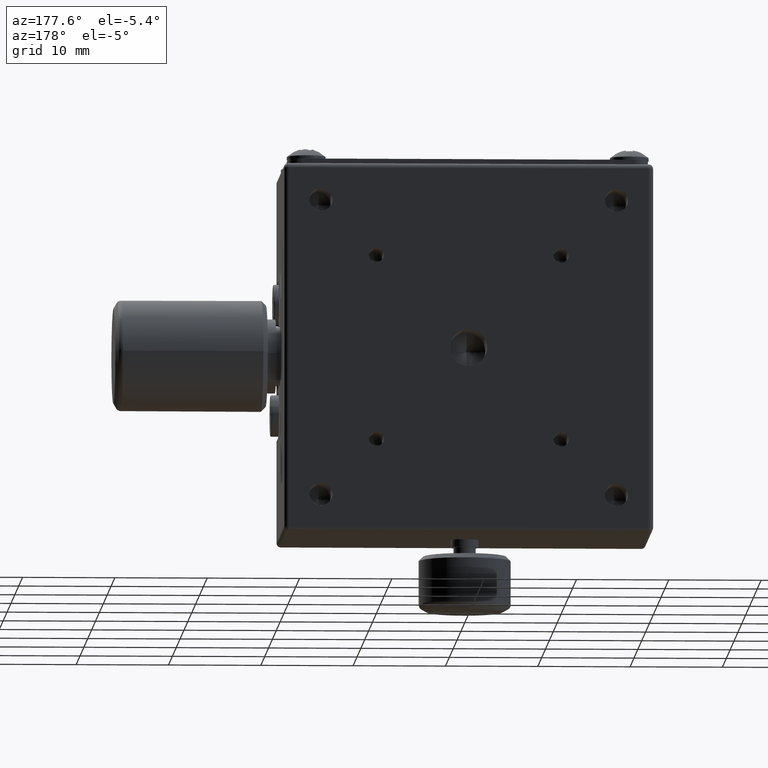
[diagram: clean part render]
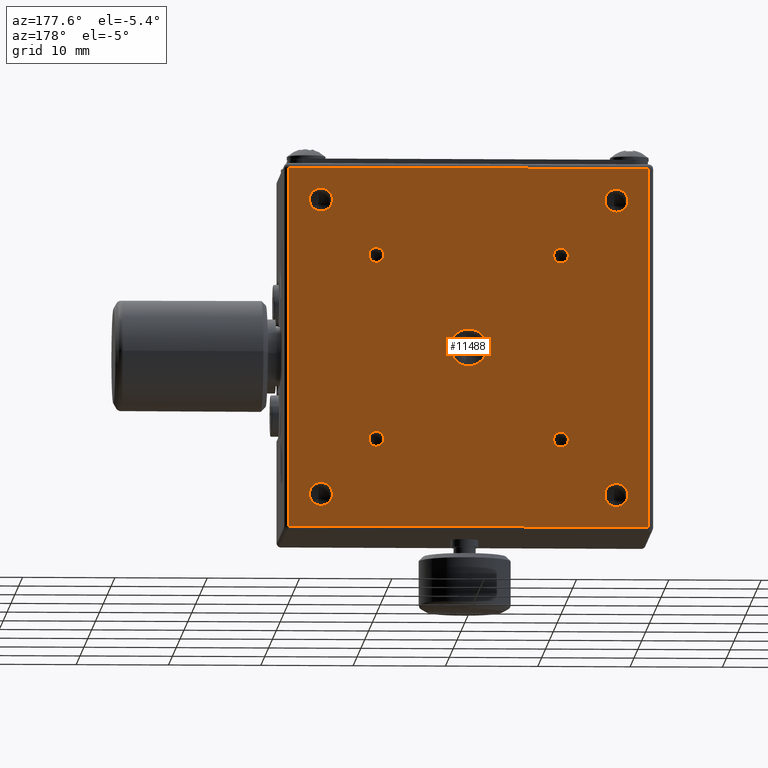
[diagram: same view with one face highlighted and labeled with its STEP entity id]
A machine part, auxiliary view. The second image highlights one B-rep face of the part: STEP entity #11488.
In plain terms, the highlighted planar face has unit normal (0, -1, 0).
Its self-contained STEP definition (entity closure, byte-faithful):
#175 = LINE ( 'NONE', #18153, #6393 ) ;
#185 = DIRECTION ( 'NONE',  ( 0.000000000000000000, 1.000000000000000000, 0.000000000000000000 ) ) ;
#244 = DIRECTION ( 'NONE',  ( 0.000000000000000000, 0.000000000000000000, 1.000000000000000000 ) ) ;
#380 = CARTESIAN_POINT ( 'NONE',  ( -10.00000000000000000, 40.00000000000000000, -9.199999999999999289 ) ) ;
#394 = VERTEX_POINT ( 'NONE', #2323 ) ;
#483 = DIRECTION ( 'NONE',  ( 0.000000000000000000, 0.000000000000000000, 1.000000000000000000 ) ) ;
#538 = LINE ( 'NONE', #17917, #19774 ) ;
#633 = EDGE_CURVE ( 'NONE', #25739, #20929, #4491, .T. ) ;
#678 = DIRECTION ( 'NONE',  ( 0.000000000000000000, 0.000000000000000000, 1.000000000000000000 ) ) ;
#874 = ORIENTED_EDGE ( 'NONE', *, *, #14924, .F. ) ;
#893 = AXIS2_PLACEMENT_3D ( 'NONE', #15643, #11113, #26324 ) ;
#991 = EDGE_CURVE ( 'NONE', #20929, #25739, #20135, .T. ) ;
#1111 = ORIENTED_EDGE ( 'NONE', *, *, #11831, .T. ) ;
#1133 = DIRECTION ( 'NONE',  ( 0.000000000000000000, 1.000000000000000000, 0.000000000000000000 ) ) ;
#1349 = AXIS2_PLACEMENT_3D ( 'NONE', #22227, #20189, #1935 ) ;
#1423 = FACE_BOUND ( 'NONE', #23931, .T. ) ;
#1427 = CIRCLE ( 'NONE', #14476, 1.249999999999999334 ) ;
#1567 = CARTESIAN_POINT ( 'NONE',  ( -20.00000000000000000, 40.00000000000000000, 20.00000000000000000 ) ) ;
#1619 = VERTEX_POINT ( 'NONE', #28747 ) ;
#1701 = CIRCLE ( 'NONE', #4038, 2.000000000000000000 ) ;
#1710 = DIRECTION ( 'NONE',  ( 1.734723475976804876E-16, -1.000000000000000000, 0.000000000000000000 ) ) ;
#1894 = CARTESIAN_POINT ( 'NONE',  ( -20.00000000000000000, 40.00000000000000000, -19.50000000000000000 ) ) ;
#1903 = CARTESIAN_POINT ( 'NONE',  ( -16.00000000000000000, 40.00000000000000000, 16.00000000000000000 ) ) ;
#1935 = DIRECTION ( 'NONE',  ( 0.000000000000000000, 0.000000000000000000, 1.000000000000000000 ) ) ;
#2033 = LINE ( 'NONE', #1894, #10081 ) ;
#2038 = AXIS2_PLACEMENT_3D ( 'NONE', #26583, #21917, #10805 ) ;
#2161 = DIRECTION ( 'NONE',  ( 0.000000000000000000, 1.000000000000000000, 0.000000000000000000 ) ) ;
#2188 = DIRECTION ( 'NONE',  ( 0.000000000000000000, 0.000000000000000000, 1.000000000000000000 ) ) ;
#2323 = CARTESIAN_POINT ( 'NONE',  ( 19.50000000000000000, 40.00000000000000000, -19.50000000000000000 ) ) ;
#2337 = VERTEX_POINT ( 'NONE', #16872 ) ;
#2352 = CARTESIAN_POINT ( 'NONE',  ( -10.00000000000000000, 40.00000000000000000, 9.199999999999999289 ) ) ;
#2798 = AXIS2_PLACEMENT_3D ( 'NONE', #1903, #15188, #6711 ) ;
#2867 = DIRECTION ( 'NONE',  ( 0.000000000000000000, 0.000000000000000000, 1.000000000000000000 ) ) ;
#3072 = EDGE_LOOP ( 'NONE', ( #11720, #8133 ) ) ;
#3189 = DIRECTION ( 'NONE',  ( 0.000000000000000000, 0.000000000000000000, 1.000000000000000000 ) ) ;
#3203 = VERTEX_POINT ( 'NONE', #3473 ) ;
#3212 = AXIS2_PLACEMENT_3D ( 'NONE', #20393, #18048, #2867 ) ;
#3458 = ORIENTED_EDGE ( 'NONE', *, *, #6688, .F. ) ;
#3473 = CARTESIAN_POINT ( 'NONE',  ( 16.00000000000000000, 40.00000000000000000, 14.75000000000000000 ) ) ;
#3484 = DIRECTION ( 'NONE',  ( 0.000000000000000000, 1.000000000000000000, 0.000000000000000000 ) ) ;
#3613 = FACE_BOUND ( 'NONE', #20534, .T. ) ;
#3669 = ORIENTED_EDGE ( 'NONE', *, *, #9067, .F. ) ;
#3722 = ORIENTED_EDGE ( 'NONE', *, *, #25144, .F. ) ;
#3756 = EDGE_LOOP ( 'NONE', ( #16642, #3722 ) ) ;
#3760 = PLANE ( 'NONE',  #16857 ) ;
#3791 = VERTEX_POINT ( 'NONE', #22851 ) ;
#3807 = VECTOR ( 'NONE', #10893, 1000.000000000000000 ) ;
#3860 = CARTESIAN_POINT ( 'NONE',  ( -10.00000000000000000, 40.00000000000000000, -10.80000000000000071 ) ) ;
#4038 = AXIS2_PLACEMENT_3D ( 'NONE', #18165, #185, #483 ) ;
#4361 = DIRECTION ( 'NONE',  ( -1.000000000000000000, -1.734723475976804876E-16, 0.000000000000000000 ) ) ;
#4376 = ORIENTED_EDGE ( 'NONE', *, *, #16426, .F. ) ;
#4491 = CIRCLE ( 'NONE', #25022, 0.7999999999999899414 ) ;
#4564 = EDGE_CURVE ( 'NONE', #3203, #17333, #13785, .T. ) ;
#4598 = CARTESIAN_POINT ( 'NONE',  ( -16.00000000000000000, 40.00000000000000000, 16.00000000000000000 ) ) ;
#4785 = CARTESIAN_POINT ( 'NONE',  ( 16.00000000000000000, 40.00000000000000000, 16.00000000000000000 ) ) ;
#5071 = EDGE_CURVE ( 'NONE', #1619, #20619, #21748, .T. ) ;
#5332 = CIRCLE ( 'NONE', #2038, 0.7999999999999899414 ) ;
#5644 = DIRECTION ( 'NONE',  ( 0.000000000000000000, 0.000000000000000000, 1.000000000000000000 ) ) ;
#5780 = CIRCLE ( 'NONE', #27236, 1.249999999999999334 ) ;
#5828 = DIRECTION ( 'NONE',  ( 0.000000000000000000, 0.000000000000000000, 1.000000000000000000 ) ) ;
#6150 = VERTEX_POINT ( 'NONE', #380 ) ;
#6168 = EDGE_CURVE ( 'NONE', #23506, #3791, #538, .T. ) ;
#6393 = VECTOR ( 'NONE', #9092, 1000.000000000000000 ) ;
#6473 = CIRCLE ( 'NONE', #1349, 0.7999999999999899414 ) ;
#6688 = EDGE_CURVE ( 'NONE', #13048, #2337, #17898, .T. ) ;
#6701 = EDGE_CURVE ( 'NONE', #19405, #20452, #5332, .T. ) ;
#6711 = DIRECTION ( 'NONE',  ( 0.000000000000000000, 0.000000000000000000, 1.000000000000000000 ) ) ;
#6785 = AXIS2_PLACEMENT_3D ( 'NONE', #4598, #13497, #28581 ) ;
#6866 = EDGE_CURVE ( 'NONE', #28586, #12294, #5780, .T. ) ;
#7167 = ORIENTED_EDGE ( 'NONE', *, *, #25314, .F. ) ;
#7303 = CARTESIAN_POINT ( 'NONE',  ( -16.00000000000000000, 40.00000000000000000, -16.00000000000000000 ) ) ;
#7617 = CARTESIAN_POINT ( 'NONE',  ( 16.00000000000000000, 40.00000000000000000, -14.75000000000000000 ) ) ;
#7821 = EDGE_CURVE ( 'NONE', #20619, #1619, #7855, .T. ) ;
#7845 = DIRECTION ( 'NONE',  ( 0.000000000000000000, 0.000000000000000000, 1.000000000000000000 ) ) ;
#7855 = CIRCLE ( 'NONE', #19515, 1.249999999999999334 ) ;
#8003 = FACE_BOUND ( 'NONE', #24335, .T. ) ;
#8014 = EDGE_LOOP ( 'NONE', ( #13676, #12629 ) ) ;
#8111 = DIRECTION ( 'NONE',  ( 0.000000000000000000, 1.000000000000000000, 0.000000000000000000 ) ) ;
#8133 = ORIENTED_EDGE ( 'NONE', *, *, #5071, .F. ) ;
#8479 = ORIENTED_EDGE ( 'NONE', *, *, #6168, .T. ) ;
#8501 = EDGE_CURVE ( 'NONE', #10556, #394, #175, .T. ) ;
#8839 = DIRECTION ( 'NONE',  ( 0.000000000000000000, 1.000000000000000000, 0.000000000000000000 ) ) ;
#8850 = EDGE_CURVE ( 'NONE', #12294, #28586, #1427, .T. ) ;
#9039 = CARTESIAN_POINT ( 'NONE',  ( 10.00000000000000000, 40.00000000000000000, 10.00000000000000000 ) ) ;
#9067 = EDGE_CURVE ( 'NONE', #10420, #6150, #16808, .T. ) ;
#9092 = DIRECTION ( 'NONE',  ( 0.000000000000000000, 0.000000000000000000, -1.000000000000000000 ) ) ;
#9395 = CARTESIAN_POINT ( 'NONE',  ( -16.00000000000000000, 40.00000000000000000, -17.25000000000000000 ) ) ;
#10081 = VECTOR ( 'NONE', #4361, 1000.000000000000000 ) ;
#10335 = FACE_BOUND ( 'NONE', #8014, .T. ) ;
#10420 = VERTEX_POINT ( 'NONE', #3860 ) ;
#10470 = DIRECTION ( 'NONE',  ( 0.000000000000000000, 0.000000000000000000, -1.000000000000000000 ) ) ;
#10556 = VERTEX_POINT ( 'NONE', #14204 ) ;
#10660 = CIRCLE ( 'NONE', #3212, 2.000000000000000000 ) ;
#10694 = DIRECTION ( 'NONE',  ( 0.000000000000000000, 1.000000000000000000, 0.000000000000000000 ) ) ;
#10805 = DIRECTION ( 'NONE',  ( 0.000000000000000000, 0.000000000000000000, 1.000000000000000000 ) ) ;
#10893 = DIRECTION ( 'NONE',  ( 1.000000000000000000, 1.734723475976804876E-16, 0.000000000000000000 ) ) ;
#11113 = DIRECTION ( 'NONE',  ( 0.000000000000000000, 1.000000000000000000, 0.000000000000000000 ) ) ;
#11351 = CARTESIAN_POINT ( 'NONE',  ( 16.00000000000000000, 40.00000000000000000, -16.00000000000000000 ) ) ;
#11488 = ADVANCED_FACE ( 'NONE', ( #3613, #28021, #12672, #8003, #25815, #12524, #17187, #1423, #10335, #25959 ), #3760, .F. ) ;
#11720 = ORIENTED_EDGE ( 'NONE', *, *, #7821, .F. ) ;
#11831 = EDGE_CURVE ( 'NONE', #3791, #10556, #26811, .T. ) ;
#11898 = EDGE_LOOP ( 'NONE', ( #13181, #24814 ) ) ;
#12294 = VERTEX_POINT ( 'NONE', #9395 ) ;
#12379 = CARTESIAN_POINT ( 'NONE',  ( 10.00000000000000000, 40.00000000000000000, -10.00000000000000000 ) ) ;
#12524 = FACE_BOUND ( 'NONE', #21862, .T. ) ;
#12614 = DIRECTION ( 'NONE',  ( 0.000000000000000000, 0.000000000000000000, 1.000000000000000000 ) ) ;
#12629 = ORIENTED_EDGE ( 'NONE', *, *, #991, .F. ) ;
#12672 = FACE_BOUND ( 'NONE', #3072, .T. ) ;
#12780 = AXIS2_PLACEMENT_3D ( 'NONE', #20016, #15325, #2188 ) ;
#13027 = CARTESIAN_POINT ( 'NONE',  ( 6.938893903907229955E-15, 40.00000000000000000, 2.000000000000000000 ) ) ;
#13048 = VERTEX_POINT ( 'NONE', #27547 ) ;
#13181 = ORIENTED_EDGE ( 'NONE', *, *, #14959, .F. ) ;
#13497 = DIRECTION ( 'NONE',  ( 0.000000000000000000, 1.000000000000000000, 0.000000000000000000 ) ) ;
#13538 = DIRECTION ( 'NONE',  ( 0.000000000000000000, 0.000000000000000000, 1.000000000000000000 ) ) ;
#13676 = ORIENTED_EDGE ( 'NONE', *, *, #633, .F. ) ;
#13785 = CIRCLE ( 'NONE', #16582, 1.250000000000001110 ) ;
#14204 = CARTESIAN_POINT ( 'NONE',  ( 19.50000000000000000, 40.00000000000000000, 19.50000000000000000 ) ) ;
#14476 = AXIS2_PLACEMENT_3D ( 'NONE', #21287, #16599, #7845 ) ;
#14924 = EDGE_CURVE ( 'NONE', #6150, #10420, #16277, .T. ) ;
#14959 = EDGE_CURVE ( 'NONE', #20452, #19405, #6473, .T. ) ;
#15023 = VERTEX_POINT ( 'NONE', #20629 ) ;
#15179 = DIRECTION ( 'NONE',  ( 0.000000000000000000, 0.000000000000000000, 1.000000000000000000 ) ) ;
#15188 = DIRECTION ( 'NONE',  ( 0.000000000000000000, 1.000000000000000000, 0.000000000000000000 ) ) ;
#15325 = DIRECTION ( 'NONE',  ( 0.000000000000000000, 1.000000000000000000, 0.000000000000000000 ) ) ;
#15643 = CARTESIAN_POINT ( 'NONE',  ( -10.00000000000000000, 40.00000000000000000, -10.00000000000000000 ) ) ;
#15661 = ORIENTED_EDGE ( 'NONE', *, *, #8850, .F. ) ;
#15677 = CARTESIAN_POINT ( 'NONE',  ( 10.00000000000000000, 40.00000000000000000, -9.199999999999999289 ) ) ;
#15776 = CARTESIAN_POINT ( 'NONE',  ( -10.00000000000000000, 40.00000000000000000, 10.80000000000000071 ) ) ;
#15783 = AXIS2_PLACEMENT_3D ( 'NONE', #25267, #16341, #23215 ) ;
#16277 = CIRCLE ( 'NONE', #893, 0.7999999999999899414 ) ;
#16341 = DIRECTION ( 'NONE',  ( 0.000000000000000000, 1.000000000000000000, 0.000000000000000000 ) ) ;
#16392 = AXIS2_PLACEMENT_3D ( 'NONE', #18795, #8111, #5644 ) ;
#16426 = EDGE_CURVE ( 'NONE', #2337, #13048, #16822, .T. ) ;
#16582 = AXIS2_PLACEMENT_3D ( 'NONE', #4785, #24938, #678 ) ;
#16599 = DIRECTION ( 'NONE',  ( 0.000000000000000000, 1.000000000000000000, 0.000000000000000000 ) ) ;
#16642 = ORIENTED_EDGE ( 'NONE', *, *, #18338, .F. ) ;
#16808 = CIRCLE ( 'NONE', #17746, 0.7999999999999899414 ) ;
#16817 = EDGE_LOOP ( 'NONE', ( #24647, #15661 ) ) ;
#16822 = CIRCLE ( 'NONE', #26145, 0.7999999999999899414 ) ;
#16857 = AXIS2_PLACEMENT_3D ( 'NONE', #1567, #1710, #10470 ) ;
#16872 = CARTESIAN_POINT ( 'NONE',  ( 10.00000000000000000, 40.00000000000000000, 9.199999999999999289 ) ) ;
#17165 = CARTESIAN_POINT ( 'NONE',  ( -16.00000000000000000, 40.00000000000000000, 14.75000000000000000 ) ) ;
#17187 = FACE_BOUND ( 'NONE', #11898, .T. ) ;
#17333 = VERTEX_POINT ( 'NONE', #25437 ) ;
#17746 = AXIS2_PLACEMENT_3D ( 'NONE', #19951, #8839, #26662 ) ;
#17898 = CIRCLE ( 'NONE', #12780, 0.7999999999999899414 ) ;
#17917 = CARTESIAN_POINT ( 'NONE',  ( -19.50000000000000000, 40.00000000000000000, 20.00000000000000000 ) ) ;
#18048 = DIRECTION ( 'NONE',  ( 0.000000000000000000, 1.000000000000000000, 0.000000000000000000 ) ) ;
#18092 = DIRECTION ( 'NONE',  ( 0.000000000000000000, 1.000000000000000000, 0.000000000000000000 ) ) ;
#18153 = CARTESIAN_POINT ( 'NONE',  ( 19.50000000000000000, 40.00000000000000000, 20.00000000000000000 ) ) ;
#18165 = CARTESIAN_POINT ( 'NONE',  ( 6.938893903907229955E-15, 40.00000000000000000, 1.517883041479705024E-15 ) ) ;
#18338 = EDGE_CURVE ( 'NONE', #15023, #21392, #24511, .T. ) ;
#18795 = CARTESIAN_POINT ( 'NONE',  ( 10.00000000000000000, 40.00000000000000000, -10.00000000000000000 ) ) ;
#19019 = ORIENTED_EDGE ( 'NONE', *, *, #8501, .T. ) ;
#19405 = VERTEX_POINT ( 'NONE', #2352 ) ;
#19515 = AXIS2_PLACEMENT_3D ( 'NONE', #11351, #2161, #244 ) ;
#19738 = CARTESIAN_POINT ( 'NONE',  ( -16.00000000000000000, 40.00000000000000000, -14.75000000000000000 ) ) ;
#19774 = VECTOR ( 'NONE', #13538, 1000.000000000000000 ) ;
#19951 = CARTESIAN_POINT ( 'NONE',  ( -10.00000000000000000, 40.00000000000000000, -10.00000000000000000 ) ) ;
#20016 = CARTESIAN_POINT ( 'NONE',  ( 10.00000000000000000, 40.00000000000000000, 10.00000000000000000 ) ) ;
#20135 = CIRCLE ( 'NONE', #16392, 0.7999999999999899414 ) ;
#20138 = VERTEX_POINT ( 'NONE', #21518 ) ;
#20189 = DIRECTION ( 'NONE',  ( 0.000000000000000000, 1.000000000000000000, 0.000000000000000000 ) ) ;
#20264 = EDGE_LOOP ( 'NONE', ( #8479, #1111, #19019, #24087 ) ) ;
#20356 = AXIS2_PLACEMENT_3D ( 'NONE', #26618, #10694, #12614 ) ;
#20393 = CARTESIAN_POINT ( 'NONE',  ( 6.938893903907229955E-15, 40.00000000000000000, 1.517883041479705024E-15 ) ) ;
#20452 = VERTEX_POINT ( 'NONE', #15776 ) ;
#20534 = EDGE_LOOP ( 'NONE', ( #25785, #22617 ) ) ;
#20619 = VERTEX_POINT ( 'NONE', #7617 ) ;
#20629 = CARTESIAN_POINT ( 'NONE',  ( -16.00000000000000000, 40.00000000000000000, 17.25000000000000000 ) ) ;
#20831 = EDGE_CURVE ( 'NONE', #394, #23506, #2033, .T. ) ;
#20929 = VERTEX_POINT ( 'NONE', #22336 ) ;
#20963 = CIRCLE ( 'NONE', #15783, 1.250000000000001110 ) ;
#21287 = CARTESIAN_POINT ( 'NONE',  ( -16.00000000000000000, 40.00000000000000000, -16.00000000000000000 ) ) ;
#21392 = VERTEX_POINT ( 'NONE', #17165 ) ;
#21518 = CARTESIAN_POINT ( 'NONE',  ( 7.183823263736700252E-15, 40.00000000000000000, -2.000000000000000000 ) ) ;
#21748 = CIRCLE ( 'NONE', #20356, 1.249999999999999334 ) ;
#21862 = EDGE_LOOP ( 'NONE', ( #3458, #4376 ) ) ;
#21917 = DIRECTION ( 'NONE',  ( 0.000000000000000000, 1.000000000000000000, 0.000000000000000000 ) ) ;
#22227 = CARTESIAN_POINT ( 'NONE',  ( -10.00000000000000000, 40.00000000000000000, 10.00000000000000000 ) ) ;
#22336 = CARTESIAN_POINT ( 'NONE',  ( 10.00000000000000000, 40.00000000000000000, -10.80000000000000071 ) ) ;
#22617 = ORIENTED_EDGE ( 'NONE', *, *, #25466, .F. ) ;
#22851 = CARTESIAN_POINT ( 'NONE',  ( -19.50000000000000000, 40.00000000000000000, 19.50000000000000000 ) ) ;
#23215 = DIRECTION ( 'NONE',  ( 0.000000000000000000, 0.000000000000000000, 1.000000000000000000 ) ) ;
#23305 = EDGE_CURVE ( 'NONE', #24784, #20138, #1701, .T. ) ;
#23506 = VERTEX_POINT ( 'NONE', #25465 ) ;
#23931 = EDGE_LOOP ( 'NONE', ( #874, #3669 ) ) ;
#24087 = ORIENTED_EDGE ( 'NONE', *, *, #20831, .T. ) ;
#24335 = EDGE_LOOP ( 'NONE', ( #7167, #26556 ) ) ;
#24511 = CIRCLE ( 'NONE', #6785, 1.250000000000001110 ) ;
#24622 = CARTESIAN_POINT ( 'NONE',  ( 20.00000000000000000, 40.00000000000000000, 19.50000000000000000 ) ) ;
#24647 = ORIENTED_EDGE ( 'NONE', *, *, #6866, .F. ) ;
#24663 = CIRCLE ( 'NONE', #2798, 1.250000000000001110 ) ;
#24784 = VERTEX_POINT ( 'NONE', #13027 ) ;
#24814 = ORIENTED_EDGE ( 'NONE', *, *, #6701, .F. ) ;
#24938 = DIRECTION ( 'NONE',  ( 0.000000000000000000, 1.000000000000000000, 0.000000000000000000 ) ) ;
#25022 = AXIS2_PLACEMENT_3D ( 'NONE', #12379, #1133, #3189 ) ;
#25144 = EDGE_CURVE ( 'NONE', #21392, #15023, #24663, .T. ) ;
#25267 = CARTESIAN_POINT ( 'NONE',  ( 16.00000000000000000, 40.00000000000000000, 16.00000000000000000 ) ) ;
#25314 = EDGE_CURVE ( 'NONE', #17333, #3203, #20963, .T. ) ;
#25437 = CARTESIAN_POINT ( 'NONE',  ( 16.00000000000000000, 40.00000000000000000, 17.25000000000000000 ) ) ;
#25465 = CARTESIAN_POINT ( 'NONE',  ( -19.50000000000000000, 40.00000000000000000, -19.50000000000000000 ) ) ;
#25466 = EDGE_CURVE ( 'NONE', #20138, #24784, #10660, .T. ) ;
#25739 = VERTEX_POINT ( 'NONE', #15677 ) ;
#25785 = ORIENTED_EDGE ( 'NONE', *, *, #23305, .F. ) ;
#25815 = FACE_BOUND ( 'NONE', #3756, .T. ) ;
#25959 = FACE_OUTER_BOUND ( 'NONE', #20264, .T. ) ;
#26145 = AXIS2_PLACEMENT_3D ( 'NONE', #9039, #18092, #15179 ) ;
#26324 = DIRECTION ( 'NONE',  ( 0.000000000000000000, 0.000000000000000000, 1.000000000000000000 ) ) ;
#26556 = ORIENTED_EDGE ( 'NONE', *, *, #4564, .F. ) ;
#26583 = CARTESIAN_POINT ( 'NONE',  ( -10.00000000000000000, 40.00000000000000000, 10.00000000000000000 ) ) ;
#26618 = CARTESIAN_POINT ( 'NONE',  ( 16.00000000000000000, 40.00000000000000000, -16.00000000000000000 ) ) ;
#26662 = DIRECTION ( 'NONE',  ( 0.000000000000000000, 0.000000000000000000, 1.000000000000000000 ) ) ;
#26811 = LINE ( 'NONE', #24622, #3807 ) ;
#27236 = AXIS2_PLACEMENT_3D ( 'NONE', #7303, #3484, #5828 ) ;
#27547 = CARTESIAN_POINT ( 'NONE',  ( 10.00000000000000000, 40.00000000000000000, 10.80000000000000071 ) ) ;
#28021 = FACE_BOUND ( 'NONE', #16817, .T. ) ;
#28581 = DIRECTION ( 'NONE',  ( 0.000000000000000000, 0.000000000000000000, 1.000000000000000000 ) ) ;
#28586 = VERTEX_POINT ( 'NONE', #19738 ) ;
#28747 = CARTESIAN_POINT ( 'NONE',  ( 16.00000000000000000, 40.00000000000000000, -17.25000000000000000 ) ) ;